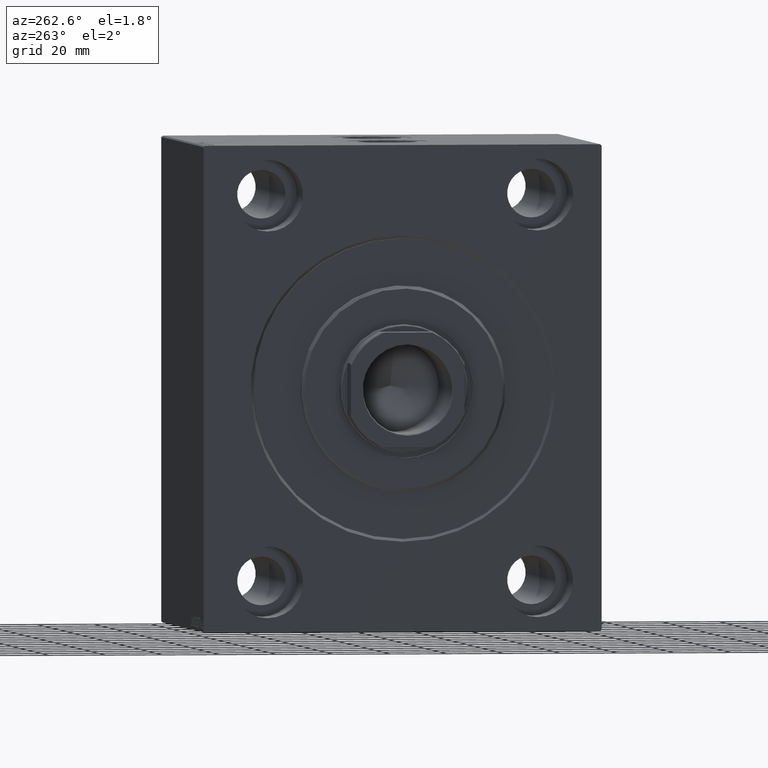
[diagram: clean part render]
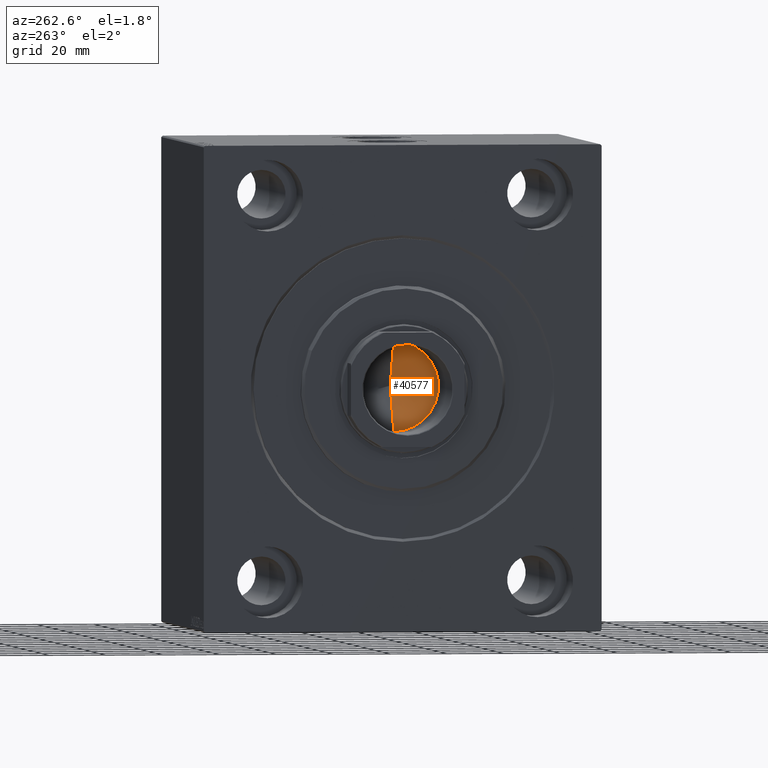
[diagram: same view with one face highlighted and labeled with its STEP entity id]
A machine part, auxiliary view. The second image highlights one B-rep face of the part: STEP entity #40577.
In plain terms, the highlighted conical surface has half-angle 59 deg.
Its self-contained STEP definition (entity closure, byte-faithful):
#2348 = CARTESIAN_POINT ( 'NONE',  ( 0.000000000000000000, 0.000000000000000000, 26.99999999999998934 ) ) ;
#2539 = ORIENTED_EDGE ( 'NONE', *, *, #9747, .F. ) ;
#3999 = CARTESIAN_POINT ( 'NONE',  ( -15.74999999999999289, 1.928818708657080556E-15, 26.99999999999998934 ) ) ;
#4409 = VERTEX_POINT ( 'NONE', #13989 ) ;
#5994 = DIRECTION ( 'NONE',  ( -0.8571673007021118895, 1.049727191138618079E-16, 0.5150380749100549327 ) ) ;
#6505 = VERTEX_POINT ( 'NONE', #3999 ) ;
#9747 = EDGE_CURVE ( 'NONE', #4409, #16057, #37447, .T. ) ;
#10304 = CARTESIAN_POINT ( 'NONE',  ( 15.74999999999999289, 0.000000000000000000, 26.99999999999998934 ) ) ;
#10510 = CARTESIAN_POINT ( 'NONE',  ( 0.000000000000000000, 0.000000000000000000, 26.99999999999998934 ) ) ;
#11295 = AXIS2_PLACEMENT_3D ( 'NONE', #2348, #18389, #32193 ) ;
#13017 = EDGE_LOOP ( 'NONE', ( #2539, #34151, #42491 ) ) ;
#13989 = CARTESIAN_POINT ( 'NONE',  ( -1.199718644317817648E-14, 0.000000000000000000, 17.53644525031590362 ) ) ;
#16057 = VERTEX_POINT ( 'NONE', #10304 ) ;
#16773 = EDGE_CURVE ( 'NONE', #4409, #6505, #40019, .T. ) ;
#17560 = VECTOR ( 'NONE', #30556, 1000.000000000000000 ) ;
#18313 = VECTOR ( 'NONE', #5994, 1000.000000000000000 ) ;
#18389 = DIRECTION ( 'NONE',  ( -0.000000000000000000, -0.000000000000000000, 1.000000000000000000 ) ) ;
#18413 = CIRCLE ( 'NONE', #34073, 15.74999999999999289 ) ;
#18608 = FACE_OUTER_BOUND ( 'NONE', #13017, .T. ) ;
#20447 = CARTESIAN_POINT ( 'NONE',  ( -15.74999999999999289, 1.928818708657080556E-15, 26.99999999999998934 ) ) ;
#22613 = CONICAL_SURFACE ( 'NONE', #11295, 15.74999999999999289, 1.029744258676653645 ) ;
#28067 = DIRECTION ( 'NONE',  ( 1.000000000000000000, 0.000000000000000000, 0.000000000000000000 ) ) ;
#30330 = CARTESIAN_POINT ( 'NONE',  ( 15.74999999999999289, 0.000000000000000000, 26.99999999999998934 ) ) ;
#30556 = DIRECTION ( 'NONE',  ( 0.8571673007021118895, 0.000000000000000000, 0.5150380749100549327 ) ) ;
#30981 = DIRECTION ( 'NONE',  ( -0.000000000000000000, -0.000000000000000000, 1.000000000000000000 ) ) ;
#32193 = DIRECTION ( 'NONE',  ( 1.000000000000000000, 0.000000000000000000, 0.000000000000000000 ) ) ;
#34073 = AXIS2_PLACEMENT_3D ( 'NONE', #10510, #30981, #28067 ) ;
#34151 = ORIENTED_EDGE ( 'NONE', *, *, #16773, .T. ) ;
#37447 = LINE ( 'NONE', #30330, #17560 ) ;
#40019 = LINE ( 'NONE', #20447, #18313 ) ;
#40577 = ADVANCED_FACE ( 'NONE', ( #18608 ), #22613, .F. ) ;
#42038 = EDGE_CURVE ( 'NONE', #6505, #16057, #18413, .T. ) ;
#42491 = ORIENTED_EDGE ( 'NONE', *, *, #42038, .T. ) ;